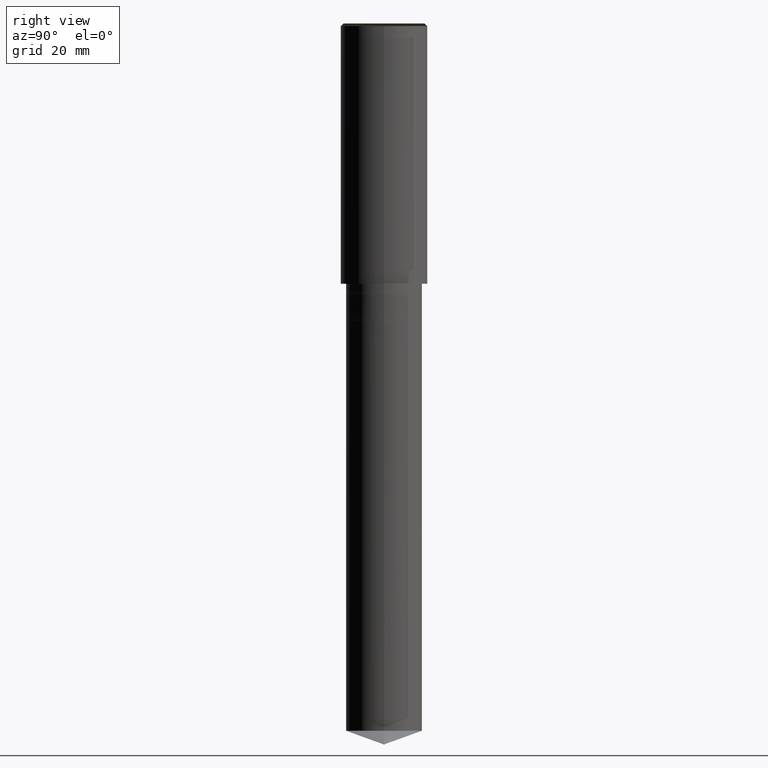
[diagram: clean part render]
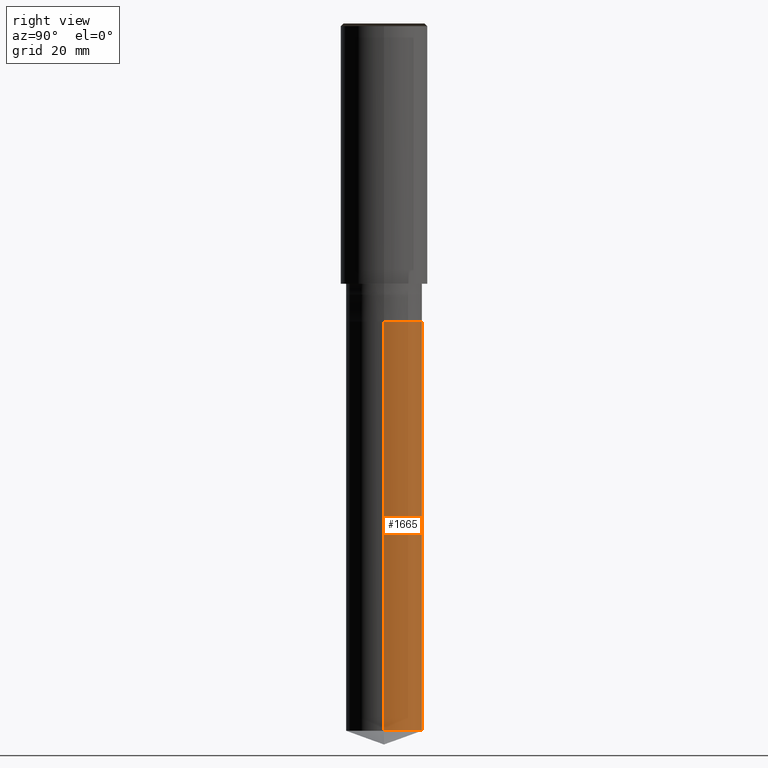
[diagram: same view with one face highlighted and labeled with its STEP entity id]
A machine part, right view. The second image highlights one B-rep face of the part: STEP entity #1665.
In plain terms, the highlighted face is a freeform B-spline surface patch.
Its self-contained STEP definition (entity closure, byte-faithful):
#1567=CARTESIAN_POINT('',(7.0,0.0,-82.452208360137));
#1568=CARTESIAN_POINT('',(7.0,7.0,-82.452208360137));
#1569=CARTESIAN_POINT('',(0.0,7.0,-82.452208360137));
#1570=CARTESIAN_POINT('',(-7.0,7.0,-82.452208360137));
#1571=CARTESIAN_POINT('',(-7.0,0.0,-82.452208360137));
#1572=CARTESIAN_POINT('',(7.0,0.0,-7.0));
#1573=CARTESIAN_POINT('',(7.0,7.0,-7.0));
#1574=CARTESIAN_POINT('',(0.0,7.0,-7.0));
#1575=CARTESIAN_POINT('',(-7.0,7.0,-7.0));
#1576=CARTESIAN_POINT('',(-7.0,0.0,-7.0));
#1646=(
BOUNDED_SURFACE()
B_SPLINE_SURFACE(1,2,(
(#1567,#1568,#1569,#1570,#1571),
(#1572,#1573,#1574,#1575,#1576)
), .UNSPECIFIED.,.F.,.F.,.F.)
B_SPLINE_SURFACE_WITH_KNOTS((2,2),(3,2,3),(
0.0,1.0),(
0.0,0.5,1.0), .UNSPECIFIED.)
GEOMETRIC_REPRESENTATION_ITEM()
RATIONAL_B_SPLINE_SURFACE(((1.0,0.707106781187,1.0,0.707106781187,1.0),
(1.0,0.707106781187,1.0,0.707106781187,1.0)
))
REPRESENTATION_ITEM('')
SURFACE()
);
#1647=(
BOUNDED_CURVE()
B_SPLINE_CURVE(2,(#1571,#1570,#1569,#1568,#1567),.UNSPECIFIED.,.F.,.F.)
B_SPLINE_CURVE_WITH_KNOTS((3,2,3),
(0.0,0.5,1.0),.UNSPECIFIED.)
CURVE()
GEOMETRIC_REPRESENTATION_ITEM()
RATIONAL_B_SPLINE_CURVE((1.0,0.707106781187,1.0,0.707106781187,1.0))
REPRESENTATION_ITEM('')
);
#1648=(
BOUNDED_CURVE()
B_SPLINE_CURVE(1,(#1567,#1572),.UNSPECIFIED.,.F.,.F.)
B_SPLINE_CURVE_WITH_KNOTS((2,2),
(0.0,1.0),.UNSPECIFIED.)
CURVE()
GEOMETRIC_REPRESENTATION_ITEM()
RATIONAL_B_SPLINE_CURVE((1.0,1.0))
REPRESENTATION_ITEM('')
);
#1649=(
BOUNDED_CURVE()
B_SPLINE_CURVE(2,(#1572,#1573,#1574,#1575,#1576),.UNSPECIFIED.,.F.,.F.)
B_SPLINE_CURVE_WITH_KNOTS((3,2,3),
(0.0,0.5,1.0),.UNSPECIFIED.)
CURVE()
GEOMETRIC_REPRESENTATION_ITEM()
RATIONAL_B_SPLINE_CURVE((1.0,0.707106781187,1.0,0.707106781187,1.0))
REPRESENTATION_ITEM('')
);
#1650=(
BOUNDED_CURVE()
B_SPLINE_CURVE(1,(#1576,#1571),.UNSPECIFIED.,.F.,.F.)
B_SPLINE_CURVE_WITH_KNOTS((2,2),
(0.0,1.0),.UNSPECIFIED.)
CURVE()
GEOMETRIC_REPRESENTATION_ITEM()
RATIONAL_B_SPLINE_CURVE((1.0,1.0))
REPRESENTATION_ITEM('')
);
#1651=VERTEX_POINT('',#1567);
#1652=VERTEX_POINT('',#1571);
#1653=VERTEX_POINT('',#1572);
#1654=VERTEX_POINT('',#1576);
#1655=EDGE_CURVE('',#1652,#1651,#1647,.T.);
#1656=EDGE_CURVE('',#1651,#1653,#1648,.T.);
#1657=EDGE_CURVE('',#1653,#1654,#1649,.T.);
#1658=EDGE_CURVE('',#1654,#1652,#1650,.T.);
#1659=ORIENTED_EDGE('',*,*,#1655,.T.);
#1660=ORIENTED_EDGE('',*,*,#1656,.T.);
#1661=ORIENTED_EDGE('',*,*,#1657,.T.);
#1662=ORIENTED_EDGE('',*,*,#1658,.T.);
#1663=EDGE_LOOP('',(#1659,#1660,#1661,#1662));
#1664=FACE_OUTER_BOUND('',#1663,.T.);
#1665=ADVANCED_FACE('',(#1664),#1646,.T.);